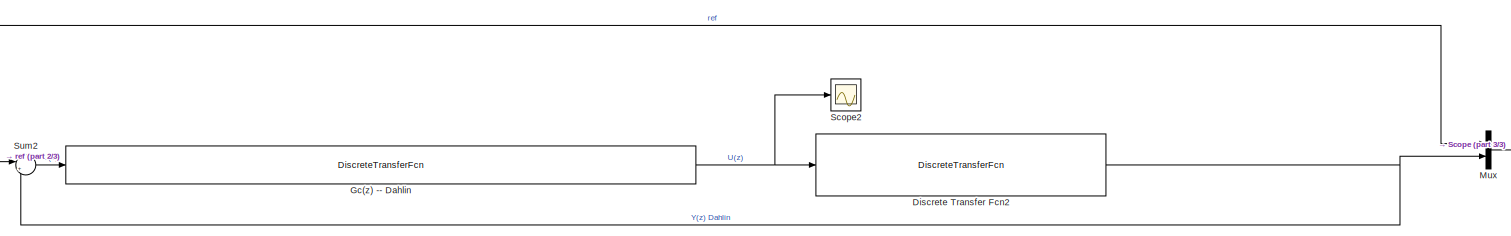
[diagram: root canvas - part 1/3, most of the canvas]
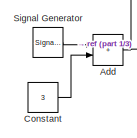
[diagram: root canvas - part 2/3, bottom left region]
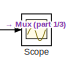
[diagram: root canvas - part 3/3, middle right region]
MODEL slx_01f6c6655e79
KIND model
CONFIG AbsTol = auto
CONFIG EnableMultiTasking = off
CONFIG FixedStep = auto
CONFIG MaxStep = auto
CONFIG MinStep = auto
CONFIG RelTol = 1e-3
CONFIG SampleTimeConstraint = Unconstrained
CONFIG SolverName = VariableStepAuto
CONFIG StartTime = 0.0
CONFIG StopTime = 200
BLOCK [Sum] Add
  IconShape = rectangular
BLOCK [Constant] Constant
  Value = 3
BLOCK [DiscreteTransferFcn] Discrete Transfer Fcn2
  Denominator = [1 0.41 -0.2644 -0.1695 0 ]
  InputPortMap = u0
  Numerator = [0.055 0.02255 0.04212 0.07212]
  SampleTime = 1
BLOCK [DiscreteTransferFcn] Gc(z) -- Dahlin
  Denominator = [0.055 -0.1931 0.2687 -0.1648 -0.07948 0.2795 -0.2285 0.0599 0.002717 0 0 0]
  InputPortMap = u0
  Numerator = [0.03921 -0.1 0.05659 0.03334 -0.02606 -0.009457 0.006386 0 0 0 0]
  SampleTime = 1
BLOCK [Mux] Mux
  DisplayOption = bar
  Inputs = 2
BLOCK [Scope] Scope
  Floating = off
  NumInputPorts = 1
  ScopeSpecificationString = Simulink.scopes.TimeScopeBlockCfg('CurrentConfiguration', extmgr.ConfigurationSet(extmgr.Configuration('Core','General UI',true),extmgr.Configuration('Core','Source UI',true),extmgr.Configuration('Sources','WiredSimulink',true,'DataLoggingVariableName','ScopeData1'),extmgr.Configuration('Visuals','Time Domain',true,'SerializedDisplays',{struct('MinYLimReal','-190102808.71667','MaxYLimReal','262388...<+1465ch>
BLOCK [Scope] Scope2
  Floating = off
  NumInputPorts = 1
  ScopeSpecificationString = Simulink.scopes.TimeScopeBlockCfg('CurrentConfiguration', extmgr.ConfigurationSet(extmgr.Configuration('Core','General UI',true),extmgr.Configuration('Core','Source UI',true),extmgr.Configuration('Sources','WiredSimulink',true),extmgr.Configuration('Visuals','Time Domain',true,'SerializedDisplays',{struct('MinYLimReal','-0.02571','MaxYLimReal','0.23141','YLabelReal','','MinYLimMag','0.00000','MaxY...<+1364ch>
BLOCK [SignalGenerator] Signal Generator
  Amplitude = 3
  Frequency = 0.2
  WaveForm = square
BLOCK [Sum] Sum2
  Inputs = |+-
NET Add:1 -> Mux:1, Sum2:1
LINE Constant:1 -> Add:2
NET Discrete Transfer Fcn2:1 -> Mux:2, Sum2:2
NET Gc(z) -- Dahlin:1 -> Discrete Transfer Fcn2:1, Scope2:1
LINE Mux:1 -> Scope:1
LINE Signal Generator:1 -> Add:1
LINE Sum2:1 -> Gc(z) -- Dahlin:1
note: NET lines group one-source signal fan-out (src -> all destinations, sorted); 1:1 wires keep LINE
